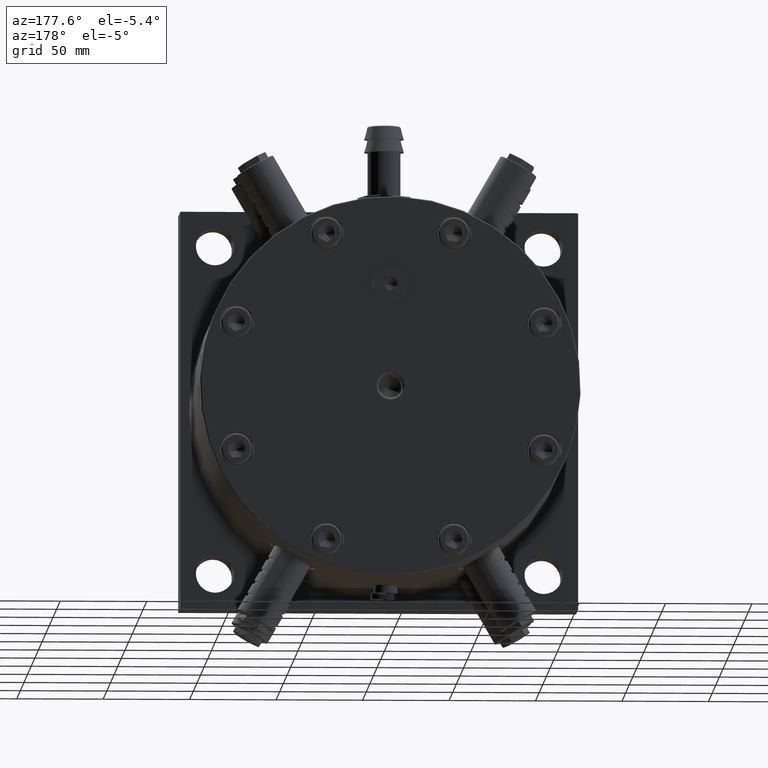
[diagram: clean part render]
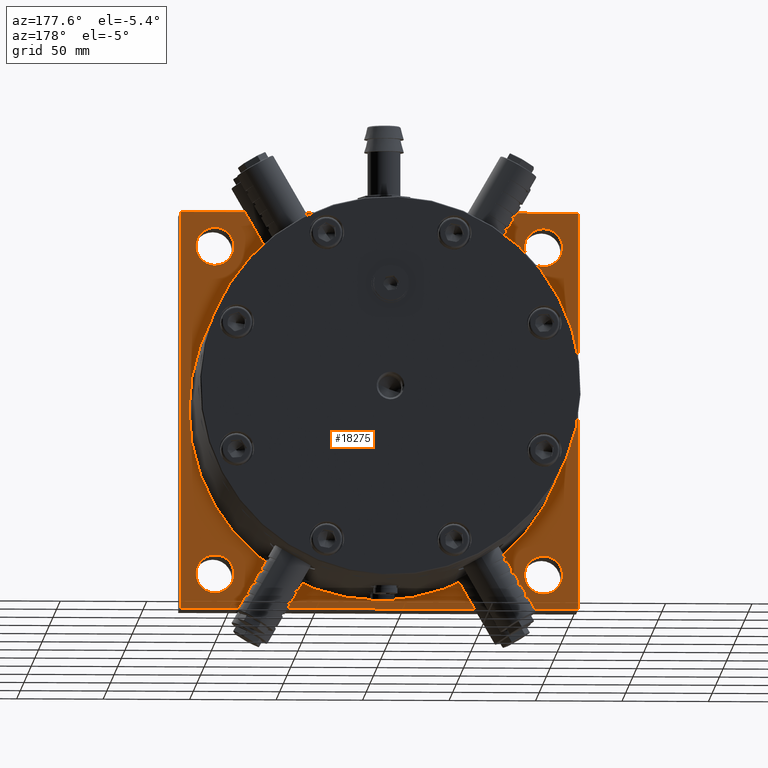
[diagram: same view with one face highlighted and labeled with its STEP entity id]
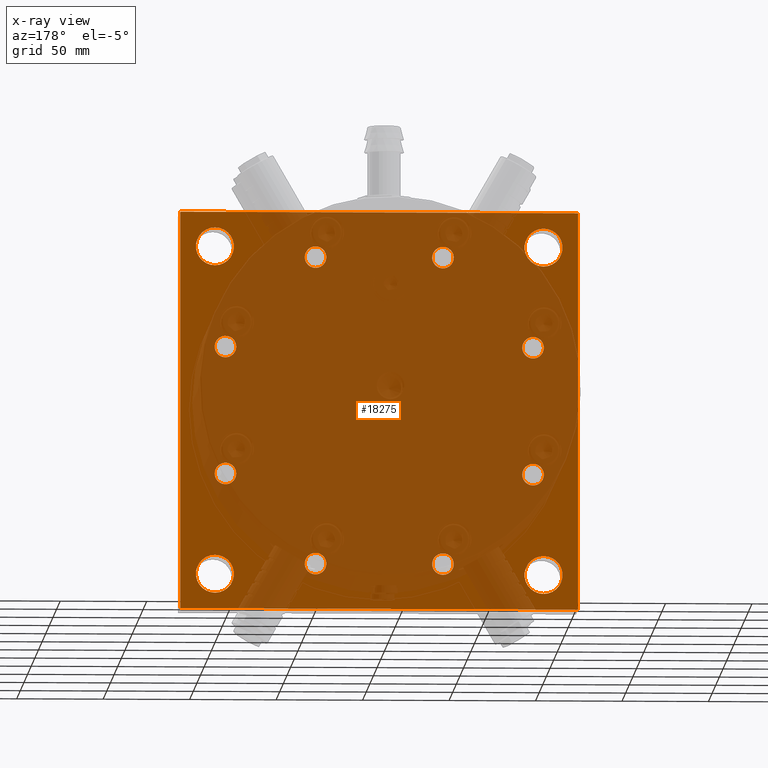
[diagram: x-ray of the same camera — body ghosted, the highlighted face saturated]
A machine part, auxiliary view. The second image highlights one B-rep face of the part: STEP entity #18275.
The next image is the same camera in x-ray: the body ghosted, the highlighted face saturated — about 81% of this face is hidden behind the body in this view.
In plain terms, the highlighted planar face has unit normal (0, -1, 0).
Its self-contained STEP definition (entity closure, byte-faithful):
#238 = EDGE_CURVE ( 'NONE', #39135, #37005, #73129, .T. ) ;
#685 = DIRECTION ( 'NONE',  ( 6.938893903907229900E-018, -1.000000000000000000, 1.387778780781446000E-017 ) ) ;
#920 = CARTESIAN_POINT ( 'NONE',  ( -95.00000000000000000, 30.00000000000000000, 84.00000000000000000 ) ) ;
#973 = VERTEX_POINT ( 'NONE', #70862 ) ;
#1111 = ORIENTED_EDGE ( 'NONE', *, *, #49493, .T. ) ;
#1340 = ORIENTED_EDGE ( 'NONE', *, *, #34549, .F. ) ;
#1390 = DIRECTION ( 'NONE',  ( 6.938893903907229900E-018, -1.000000000000000000, 1.387778780781446000E-017 ) ) ;
#1669 = CARTESIAN_POINT ( 'NONE',  ( 115.0000000000000000, 30.00000000000000000, -115.0000000000000000 ) ) ;
#1937 = DIRECTION ( 'NONE',  ( 0.0000000000000000000, 0.0000000000000000000, -1.000000000000000000 ) ) ;
#2023 = VERTEX_POINT ( 'NONE', #15480 ) ;
#2024 = DIRECTION ( 'NONE',  ( 6.938893903907229900E-018, -1.000000000000000000, 1.387778780781446000E-017 ) ) ;
#2575 = VERTEX_POINT ( 'NONE', #12287 ) ;
#2736 = CIRCLE ( 'NONE', #13615, 6.250000000000005300 ) ;
#2757 = CIRCLE ( 'NONE', #38397, 6.250000000000002700 ) ;
#2866 = ORIENTED_EDGE ( 'NONE', *, *, #46795, .T. ) ;
#2909 = DIRECTION ( 'NONE',  ( -1.000000000000000000, 0.0000000000000000000, 9.992007221626401000E-015 ) ) ;
#3011 = DIRECTION ( 'NONE',  ( 1.000000000000000000, 0.0000000000000000000, -3.330669073875466900E-015 ) ) ;
#3479 = ORIENTED_EDGE ( 'NONE', *, *, #238, .T. ) ;
#3729 = EDGE_CURVE ( 'NONE', #46838, #17806, #16886, .T. ) ;
#3855 = CARTESIAN_POINT ( 'NONE',  ( -88.92340500421239800, 30.00000000000000000, -36.83328036513954400 ) ) ;
#4217 = EDGE_LOOP ( 'NONE', ( #7957, #60934 ) ) ;
#4321 = DIRECTION ( 'NONE',  ( 6.938893903907229900E-018, -1.000000000000000000, 1.387778780781446000E-017 ) ) ;
#4671 = AXIS2_PLACEMENT_3D ( 'NONE', #18884, #41245, #18628 ) ;
#4727 = CARTESIAN_POINT ( 'NONE',  ( -88.92340500421210000, 30.00000000000000000, 36.83328036514040300 ) ) ;
#4939 = VERTEX_POINT ( 'NONE', #21156 ) ;
#5226 = EDGE_LOOP ( 'NONE', ( #19890, #64031 ) ) ;
#6187 = VERTEX_POINT ( 'NONE', #70993 ) ;
#6239 = DIRECTION ( 'NONE',  ( 1.000000000000000000, 0.0000000000000000000, -3.330669073875466900E-015 ) ) ;
#6454 = DIRECTION ( 'NONE',  ( -2.465922601272785300E-016, 1.478485803948513900E-018, 1.000000000000000000 ) ) ;
#6866 = EDGE_LOOP ( 'NONE', ( #25203, #10555 ) ) ;
#7000 = DIRECTION ( 'NONE',  ( 6.938893903907229900E-018, -1.000000000000000000, 1.387778780781446000E-017 ) ) ;
#7957 = ORIENTED_EDGE ( 'NONE', *, *, #33354, .T. ) ;
#8182 = DIRECTION ( 'NONE',  ( 6.938893903907229900E-018, -1.000000000000000000, 1.387778780781446000E-017 ) ) ;
#8216 = AXIS2_PLACEMENT_3D ( 'NONE', #25938, #61221, #37955 ) ;
#8779 = CIRCLE ( 'NONE', #27180, 6.250000000000005300 ) ;
#8829 = DIRECTION ( 'NONE',  ( 6.938893903907229900E-018, -1.000000000000000000, 1.387778780781446000E-017 ) ) ;
#9146 = VERTEX_POINT ( 'NONE', #50527 ) ;
#9396 = DIRECTION ( 'NONE',  ( 0.0000000000000000000, 0.0000000000000000000, 1.000000000000000000 ) ) ;
#9770 = AXIS2_PLACEMENT_3D ( 'NONE', #71657, #48928, #49178 ) ;
#9817 = VERTEX_POINT ( 'NONE', #29284 ) ;
#10464 = AXIS2_PLACEMENT_3D ( 'NONE', #49102, #72533, #20510 ) ;
#10471 = CARTESIAN_POINT ( 'NONE',  ( -93.34282238662831300, 30.00000000000000000, -41.25269774755545900 ) ) ;
#10555 = ORIENTED_EDGE ( 'NONE', *, *, #26642, .T. ) ;
#10568 = ORIENTED_EDGE ( 'NONE', *, *, #24955, .T. ) ;
#10874 = CARTESIAN_POINT ( 'NONE',  ( 41.25269774755372500, 30.00000000000000000, -93.34282238662766000 ) ) ;
#11516 = EDGE_CURVE ( 'NONE', #37864, #39817, #68960, .T. ) ;
#11767 = CARTESIAN_POINT ( 'NONE',  ( -88.92340500421239800, 30.00000000000000000, -36.83328036513954400 ) ) ;
#12255 = ORIENTED_EDGE ( 'NONE', *, *, #53181, .T. ) ;
#12287 = CARTESIAN_POINT ( 'NONE',  ( 115.0000000000000000, 30.00000000000000000, 115.0000000000000000 ) ) ;
#12416 = VERTEX_POINT ( 'NONE', #73099 ) ;
#13243 = VERTEX_POINT ( 'NONE', #59543 ) ;
#13615 = AXIS2_PLACEMENT_3D ( 'NONE', #48294, #8182, #26208 ) ;
#13832 = FACE_OUTER_BOUND ( 'NONE', #67614, .T. ) ;
#14443 = CIRCLE ( 'NONE', #8216, 6.249999999999996400 ) ;
#14469 = EDGE_CURVE ( 'NONE', #13243, #41021, #62423, .T. ) ;
#14678 = CARTESIAN_POINT ( 'NONE',  ( -115.0000000000000000, 30.00000000000000000, 115.0000000000000000 ) ) ;
#14793 = DIRECTION ( 'NONE',  ( 6.938893903907229900E-018, -1.000000000000000000, 1.387778780781446000E-017 ) ) ;
#15353 = AXIS2_PLACEMENT_3D ( 'NONE', #70499, #43774, #9396 ) ;
#15480 = CARTESIAN_POINT ( 'NONE',  ( -84.50398762179646900, 30.00000000000000000, -32.41386298272363600 ) ) ;
#15595 = FACE_BOUND ( 'NONE', #4217, .T. ) ;
#16072 = EDGE_CURVE ( 'NONE', #47399, #9817, #70233, .T. ) ;
#16611 = AXIS2_PLACEMENT_3D ( 'NONE', #40547, #685, #29224 ) ;
#16652 = CARTESIAN_POINT ( 'NONE',  ( -95.00000000000000000, 30.00000000000000000, -84.00000000000000000 ) ) ;
#16815 = CARTESIAN_POINT ( 'NONE',  ( -115.0000000000000000, 30.00000000000000000, -115.0000000000000000 ) ) ;
#16886 = CIRCLE ( 'NONE', #9770, 6.249999999999996400 ) ;
#17054 = DIRECTION ( 'NONE',  ( 1.259158444071523800E-016, -1.478485803948512000E-018, -1.000000000000000000 ) ) ;
#17314 = CARTESIAN_POINT ( 'NONE',  ( -95.00000000000000000, 30.00000000000000000, 95.00000000000000000 ) ) ;
#17403 = FACE_BOUND ( 'NONE', #18227, .T. ) ;
#17539 = ORIENTED_EDGE ( 'NONE', *, *, #59467, .T. ) ;
#17806 = VERTEX_POINT ( 'NONE', #54461 ) ;
#18227 = EDGE_LOOP ( 'NONE', ( #2866, #60289 ) ) ;
#18275 = ADVANCED_FACE ( 'NONE', ( #44355, #71149, #26423, #39884, #40773, #49705, #32678, #17403, #61353, #30891, #15595, #29078, #13832 ), #54869, .F. ) ;
#18462 = ORIENTED_EDGE ( 'NONE', *, *, #40067, .T. ) ;
#18591 = CIRCLE ( 'NONE', #40766, 6.250000000000005300 ) ;
#18628 = DIRECTION ( 'NONE',  ( 0.0000000000000000000, 0.0000000000000000000, 1.000000000000000000 ) ) ;
#18884 = CARTESIAN_POINT ( 'NONE',  ( 95.00000000000000000, 30.00000000000000000, -95.00000000000000000 ) ) ;
#18958 = AXIS2_PLACEMENT_3D ( 'NONE', #4727, #62117, #6239 ) ;
#19890 = ORIENTED_EDGE ( 'NONE', *, *, #11516, .T. ) ;
#20510 = DIRECTION ( 'NONE',  ( -6.557763654708959400E-017, 1.478485803948509700E-018, 1.000000000000000000 ) ) ;
#21076 = ORIENTED_EDGE ( 'NONE', *, *, #42498, .T. ) ;
#21156 = CARTESIAN_POINT ( 'NONE',  ( -36.83328036514085100, 30.00000000000000000, -95.17340500421120500 ) ) ;
#21462 = LINE ( 'NONE', #27372, #63610 ) ;
#21971 = DIRECTION ( 'NONE',  ( 6.938893903907229900E-018, -1.000000000000000000, 1.387778780781446000E-017 ) ) ;
#22386 = EDGE_CURVE ( 'NONE', #57074, #973, #69791, .T. ) ;
#22864 = LINE ( 'NONE', #16815, #64137 ) ;
#23011 = CIRCLE ( 'NONE', #56373, 6.249999999999997300 ) ;
#23028 = DIRECTION ( 'NONE',  ( 0.7071067811865441300, 0.0000000000000000000, -0.7071067811865507900 ) ) ;
#23098 = EDGE_LOOP ( 'NONE', ( #12255, #17539 ) ) ;
#23142 = EDGE_LOOP ( 'NONE', ( #24845, #69532 ) ) ;
#23674 = DIRECTION ( 'NONE',  ( 6.938893903907229900E-018, -1.000000000000000000, 1.387778780781446000E-017 ) ) ;
#24390 = CIRCLE ( 'NONE', #39972, 6.250000000000005300 ) ;
#24488 = VECTOR ( 'NONE', #6454, 1000.000000000000000 ) ;
#24615 = AXIS2_PLACEMENT_3D ( 'NONE', #64353, #7000, #69801 ) ;
#24623 = AXIS2_PLACEMENT_3D ( 'NONE', #17314, #46187, #45187 ) ;
#24744 = CARTESIAN_POINT ( 'NONE',  ( 95.00000000000000000, 30.00000000000000000, 95.00000000000000000 ) ) ;
#24845 = ORIENTED_EDGE ( 'NONE', *, *, #62926, .T. ) ;
#24955 = EDGE_CURVE ( 'NONE', #12416, #4939, #8779, .T. ) ;
#25164 = AXIS2_PLACEMENT_3D ( 'NONE', #24744, #64802, #1937 ) ;
#25203 = ORIENTED_EDGE ( 'NONE', *, *, #16072, .T. ) ;
#25446 = EDGE_LOOP ( 'NONE', ( #53632, #29930 ) ) ;
#25603 = EDGE_LOOP ( 'NONE', ( #1111, #3479 ) ) ;
#25660 = AXIS2_PLACEMENT_3D ( 'NONE', #3855, #4321, #44477 ) ;
#25938 = CARTESIAN_POINT ( 'NONE',  ( 36.83328036513785300, 30.00000000000000000, -88.92340500421170200 ) ) ;
#26132 = DIRECTION ( 'NONE',  ( -6.661338147750933700E-015, 0.0000000000000000000, -1.000000000000000000 ) ) ;
#26208 = DIRECTION ( 'NONE',  ( -1.000000000000000000, 0.0000000000000000000, 9.992007221626401000E-015 ) ) ;
#26423 = FACE_BOUND ( 'NONE', #52348, .T. ) ;
#26505 = DIRECTION ( 'NONE',  ( -0.7071067811865546800, 0.0000000000000000000, -0.7071067811865402500 ) ) ;
#26642 = EDGE_CURVE ( 'NONE', #9817, #47399, #69425, .T. ) ;
#27180 = AXIS2_PLACEMENT_3D ( 'NONE', #64264, #1390, #69973 ) ;
#27372 = CARTESIAN_POINT ( 'NONE',  ( 115.0000000000000000, 30.00000000000000000, 115.0000000000000000 ) ) ;
#27652 = ORIENTED_EDGE ( 'NONE', *, *, #14469, .T. ) ;
#27662 = VERTEX_POINT ( 'NONE', #16652 ) ;
#28160 = CARTESIAN_POINT ( 'NONE',  ( 36.83328036513970000, 30.00000000000000000, 88.92340500421120500 ) ) ;
#28622 = AXIS2_PLACEMENT_3D ( 'NONE', #33787, #21971, #73771 ) ;
#28925 = CIRCLE ( 'NONE', #28622, 10.99999999999999600 ) ;
#29078 = FACE_BOUND ( 'NONE', #68729, .T. ) ;
#29155 = EDGE_CURVE ( 'NONE', #17806, #46838, #14443, .T. ) ;
#29162 = AXIS2_PLACEMENT_3D ( 'NONE', #60742, #43038, #2909 ) ;
#29224 = DIRECTION ( 'NONE',  ( 0.7071067811865441300, 0.0000000000000000000, -0.7071067811865507900 ) ) ;
#29284 = CARTESIAN_POINT ( 'NONE',  ( -41.25269774755614800, 30.00000000000000000, 93.34282238662764500 ) ) ;
#29930 = ORIENTED_EDGE ( 'NONE', *, *, #3729, .T. ) ;
#30322 = CARTESIAN_POINT ( 'NONE',  ( -32.41386298272434600, 30.00000000000000000, 84.50398762179575800 ) ) ;
#30412 = CIRCLE ( 'NONE', #24623, 10.99999999999999600 ) ;
#30891 = FACE_BOUND ( 'NONE', #42934, .T. ) ;
#31316 = CARTESIAN_POINT ( 'NONE',  ( -95.00000000000000000, 30.00000000000000000, 106.0000000000000000 ) ) ;
#31686 = CARTESIAN_POINT ( 'NONE',  ( -82.67340500421210000, 30.00000000000000000, 36.83328036514038200 ) ) ;
#31790 = CARTESIAN_POINT ( 'NONE',  ( 93.34282238662676400, 30.00000000000000000, 41.25269774755507500 ) ) ;
#32526 = CARTESIAN_POINT ( 'NONE',  ( 88.92340500421079200, 30.00000000000000000, 36.83328036513920300 ) ) ;
#32678 = FACE_BOUND ( 'NONE', #5226, .T. ) ;
#33354 = EDGE_CURVE ( 'NONE', #2023, #35013, #43700, .T. ) ;
#33785 = EDGE_CURVE ( 'NONE', #35013, #2023, #23011, .T. ) ;
#33787 = CARTESIAN_POINT ( 'NONE',  ( -95.00000000000000000, 30.00000000000000000, -95.00000000000000000 ) ) ;
#33982 = CARTESIAN_POINT ( 'NONE',  ( 84.50398762179482000, 30.00000000000000000, 32.41386298272332300 ) ) ;
#34288 = ORIENTED_EDGE ( 'NONE', *, *, #50533, .F. ) ;
#34549 = EDGE_CURVE ( 'NONE', #46590, #57074, #22864, .T. ) ;
#34587 = AXIS2_PLACEMENT_3D ( 'NONE', #69936, #23674, #63481 ) ;
#35013 = VERTEX_POINT ( 'NONE', #10471 ) ;
#35054 = CARTESIAN_POINT ( 'NONE',  ( 115.0000000000000000, 30.00000000000000000, -115.0000000000000000 ) ) ;
#35100 = ORIENTED_EDGE ( 'NONE', *, *, #22386, .F. ) ;
#35178 = CARTESIAN_POINT ( 'NONE',  ( -95.00000000000000000, 30.00000000000000000, -106.0000000000000000 ) ) ;
#35567 = CARTESIAN_POINT ( 'NONE',  ( -36.83328036514024700, 30.00000000000000000, 88.92340500421170200 ) ) ;
#37005 = VERTEX_POINT ( 'NONE', #46179 ) ;
#37377 = EDGE_CURVE ( 'NONE', #27662, #61862, #28925, .T. ) ;
#37864 = VERTEX_POINT ( 'NONE', #33982 ) ;
#37955 = DIRECTION ( 'NONE',  ( -0.7071067811865398000, 0.0000000000000000000, 0.7071067811865553400 ) ) ;
#38373 = CARTESIAN_POINT ( 'NONE',  ( 36.83328036513970000, 30.00000000000000000, 88.92340500421120500 ) ) ;
#38397 = AXIS2_PLACEMENT_3D ( 'NONE', #63529, #64035, #40790 ) ;
#39135 = VERTEX_POINT ( 'NONE', #41207 ) ;
#39386 = VECTOR ( 'NONE', #52795, 1000.000000000000000 ) ;
#39817 = VERTEX_POINT ( 'NONE', #31790 ) ;
#39884 = FACE_BOUND ( 'NONE', #25603, .T. ) ;
#39972 = AXIS2_PLACEMENT_3D ( 'NONE', #38373, #49893, #26132 ) ;
#40067 = EDGE_CURVE ( 'NONE', #50144, #53989, #47788, .T. ) ;
#40547 = CARTESIAN_POINT ( 'NONE',  ( -36.83328036514024700, 30.00000000000000000, 88.92340500421170200 ) ) ;
#40766 = AXIS2_PLACEMENT_3D ( 'NONE', #47954, #8829, #48909 ) ;
#40773 = FACE_BOUND ( 'NONE', #25446, .T. ) ;
#40790 = DIRECTION ( 'NONE',  ( -0.7071067811865546800, 0.0000000000000000000, -0.7071067811865402500 ) ) ;
#41021 = VERTEX_POINT ( 'NONE', #31686 ) ;
#41094 = AXIS2_PLACEMENT_3D ( 'NONE', #48381, #2024, #3011 ) ;
#41207 = CARTESIAN_POINT ( 'NONE',  ( 95.00000000000000000, 30.00000000000000000, -106.0000000000000000 ) ) ;
#41245 = DIRECTION ( 'NONE',  ( 6.938893903907229900E-018, -1.000000000000000000, 1.387778780781446000E-017 ) ) ;
#41278 = CARTESIAN_POINT ( 'NONE',  ( 95.00000000000000000, 30.00000000000000000, 84.00000000000000000 ) ) ;
#41744 = AXIS2_PLACEMENT_3D ( 'NONE', #49872, #14793, #55159 ) ;
#41972 = AXIS2_PLACEMENT_3D ( 'NONE', #32526, #66544, #26505 ) ;
#42498 = EDGE_CURVE ( 'NONE', #53989, #50144, #30412, .T. ) ;
#42658 = VERTEX_POINT ( 'NONE', #54404 ) ;
#42934 = EDGE_LOOP ( 'NONE', ( #65010, #27652 ) ) ;
#43038 = DIRECTION ( 'NONE',  ( 6.938893903907229900E-018, -1.000000000000000000, 1.387778780781446000E-017 ) ) ;
#43700 = CIRCLE ( 'NONE', #25660, 6.249999999999997300 ) ;
#43774 = DIRECTION ( 'NONE',  ( 6.938893903907229900E-018, -1.000000000000000000, 1.387778780781446000E-017 ) ) ;
#44355 = FACE_BOUND ( 'NONE', #23098, .T. ) ;
#44477 = DIRECTION ( 'NONE',  ( 0.7071067811865486800, 0.0000000000000000000, 0.7071067811865464600 ) ) ;
#44492 = VERTEX_POINT ( 'NONE', #41278 ) ;
#45187 = DIRECTION ( 'NONE',  ( 0.0000000000000000000, 0.0000000000000000000, 1.000000000000000000 ) ) ;
#46067 = CARTESIAN_POINT ( 'NONE',  ( -115.0000000000000000, 30.00000000000000000, -115.0000000000000000 ) ) ;
#46179 = CARTESIAN_POINT ( 'NONE',  ( 95.00000000000000000, 30.00000000000000000, -84.00000000000000000 ) ) ;
#46187 = DIRECTION ( 'NONE',  ( 6.938893903907229900E-018, -1.000000000000000000, 1.387778780781446000E-017 ) ) ;
#46335 = EDGE_CURVE ( 'NONE', #973, #2575, #51337, .T. ) ;
#46590 = VERTEX_POINT ( 'NONE', #14678 ) ;
#46795 = EDGE_CURVE ( 'NONE', #6187, #42658, #57604, .T. ) ;
#46838 = VERTEX_POINT ( 'NONE', #10874 ) ;
#47007 = AXIS2_PLACEMENT_3D ( 'NONE', #35567, #69534, #23028 ) ;
#47399 = VERTEX_POINT ( 'NONE', #30322 ) ;
#47788 = CIRCLE ( 'NONE', #15353, 10.99999999999999600 ) ;
#47954 = CARTESIAN_POINT ( 'NONE',  ( -36.83328036514085100, 30.00000000000000000, -88.92340500421120500 ) ) ;
#48294 = CARTESIAN_POINT ( 'NONE',  ( 88.92340500421009600, 30.00000000000000000, -36.83328036514074500 ) ) ;
#48381 = CARTESIAN_POINT ( 'NONE',  ( -88.92340500421210000, 30.00000000000000000, 36.83328036514040300 ) ) ;
#48909 = DIRECTION ( 'NONE',  ( 0.0000000000000000000, 0.0000000000000000000, 1.000000000000000000 ) ) ;
#48928 = DIRECTION ( 'NONE',  ( 6.938893903907229900E-018, -1.000000000000000000, 1.387778780781446000E-017 ) ) ;
#49028 = CIRCLE ( 'NONE', #24615, 10.99999999999999600 ) ;
#49102 = CARTESIAN_POINT ( 'NONE',  ( 115.0000000000000000, 30.00000000000000000, 115.0000000000000000 ) ) ;
#49178 = DIRECTION ( 'NONE',  ( -0.7071067811865398000, 0.0000000000000000000, 0.7071067811865553400 ) ) ;
#49493 = EDGE_CURVE ( 'NONE', #37005, #39135, #69084, .T. ) ;
#49647 = ORIENTED_EDGE ( 'NONE', *, *, #46335, .F. ) ;
#49705 = FACE_BOUND ( 'NONE', #23142, .T. ) ;
#49872 = CARTESIAN_POINT ( 'NONE',  ( 95.00000000000000000, 30.00000000000000000, -95.00000000000000000 ) ) ;
#49893 = DIRECTION ( 'NONE',  ( 6.938893903907229900E-018, -1.000000000000000000, 1.387778780781446000E-017 ) ) ;
#50127 = EDGE_CURVE ( 'NONE', #39817, #37864, #2757, .T. ) ;
#50144 = VERTEX_POINT ( 'NONE', #920 ) ;
#50527 = CARTESIAN_POINT ( 'NONE',  ( 82.67340500421009600, 30.00000000000000000, -36.83328036514068800 ) ) ;
#50533 = EDGE_CURVE ( 'NONE', #2575, #46590, #21462, .T. ) ;
#50738 = CIRCLE ( 'NONE', #41094, 6.250000000000005300 ) ;
#51337 = LINE ( 'NONE', #35054, #24488 ) ;
#51482 = DIRECTION ( 'NONE',  ( 6.938893903907229900E-018, -1.000000000000000000, 1.387778780781446000E-017 ) ) ;
#51849 = VERTEX_POINT ( 'NONE', #59789 ) ;
#52348 = EDGE_LOOP ( 'NONE', ( #53400, #61434 ) ) ;
#52795 = DIRECTION ( 'NONE',  ( 1.000000000000000000, -1.387778780781446000E-017, 1.010589132809709800E-017 ) ) ;
#53181 = EDGE_CURVE ( 'NONE', #65236, #44492, #61466, .T. ) ;
#53400 = ORIENTED_EDGE ( 'NONE', *, *, #37377, .T. ) ;
#53632 = ORIENTED_EDGE ( 'NONE', *, *, #29155, .T. ) ;
#53989 = VERTEX_POINT ( 'NONE', #31316 ) ;
#54404 = CARTESIAN_POINT ( 'NONE',  ( 36.83328036513974300, 30.00000000000000000, 95.17340500421120500 ) ) ;
#54461 = CARTESIAN_POINT ( 'NONE',  ( 32.41386298272198000, 30.00000000000000000, -84.50398762179573000 ) ) ;
#54869 = PLANE ( 'NONE',  #10464 ) ;
#55159 = DIRECTION ( 'NONE',  ( 0.0000000000000000000, 0.0000000000000000000, 1.000000000000000000 ) ) ;
#56373 = AXIS2_PLACEMENT_3D ( 'NONE', #11767, #68064, #68312 ) ;
#57074 = VERTEX_POINT ( 'NONE', #46067 ) ;
#57496 = DIRECTION ( 'NONE',  ( -6.661338147750933700E-015, 0.0000000000000000000, -1.000000000000000000 ) ) ;
#57604 = CIRCLE ( 'NONE', #71278, 6.250000000000005300 ) ;
#57733 = EDGE_CURVE ( 'NONE', #4939, #12416, #18591, .T. ) ;
#57753 = CIRCLE ( 'NONE', #29162, 6.250000000000005300 ) ;
#59467 = EDGE_CURVE ( 'NONE', #44492, #65236, #69417, .T. ) ;
#59543 = CARTESIAN_POINT ( 'NONE',  ( -95.17340500421210000, 30.00000000000000000, 36.83328036514041800 ) ) ;
#59789 = CARTESIAN_POINT ( 'NONE',  ( 95.17340500421011000, 30.00000000000000000, -36.83328036514081600 ) ) ;
#60289 = ORIENTED_EDGE ( 'NONE', *, *, #70321, .T. ) ;
#60742 = CARTESIAN_POINT ( 'NONE',  ( 88.92340500421009600, 30.00000000000000000, -36.83328036514074500 ) ) ;
#60934 = ORIENTED_EDGE ( 'NONE', *, *, #33785, .T. ) ;
#61221 = DIRECTION ( 'NONE',  ( 6.938893903907229900E-018, -1.000000000000000000, 1.387778780781446000E-017 ) ) ;
#61353 = FACE_BOUND ( 'NONE', #6866, .T. ) ;
#61434 = ORIENTED_EDGE ( 'NONE', *, *, #62285, .T. ) ;
#61466 = CIRCLE ( 'NONE', #25164, 10.99999999999999600 ) ;
#61862 = VERTEX_POINT ( 'NONE', #35178 ) ;
#62117 = DIRECTION ( 'NONE',  ( 6.938893903907229900E-018, -1.000000000000000000, 1.387778780781446000E-017 ) ) ;
#62285 = EDGE_CURVE ( 'NONE', #61862, #27662, #49028, .T. ) ;
#62423 = CIRCLE ( 'NONE', #18958, 6.250000000000005300 ) ;
#62926 = EDGE_CURVE ( 'NONE', #9146, #51849, #2736, .T. ) ;
#63481 = DIRECTION ( 'NONE',  ( 0.0000000000000000000, 0.0000000000000000000, -1.000000000000000000 ) ) ;
#63482 = EDGE_LOOP ( 'NONE', ( #21076, #18462 ) ) ;
#63529 = CARTESIAN_POINT ( 'NONE',  ( 88.92340500421079200, 30.00000000000000000, 36.83328036513920300 ) ) ;
#63610 = VECTOR ( 'NONE', #67425, 1000.000000000000000 ) ;
#64031 = ORIENTED_EDGE ( 'NONE', *, *, #50127, .T. ) ;
#64035 = DIRECTION ( 'NONE',  ( 6.938893903907229900E-018, -1.000000000000000000, 1.387778780781446000E-017 ) ) ;
#64137 = VECTOR ( 'NONE', #17054, 1000.000000000000000 ) ;
#64264 = CARTESIAN_POINT ( 'NONE',  ( -36.83328036514085100, 30.00000000000000000, -88.92340500421120500 ) ) ;
#64353 = CARTESIAN_POINT ( 'NONE',  ( -95.00000000000000000, 30.00000000000000000, -95.00000000000000000 ) ) ;
#64802 = DIRECTION ( 'NONE',  ( 6.938893903907229900E-018, -1.000000000000000000, 1.387778780781446000E-017 ) ) ;
#65010 = ORIENTED_EDGE ( 'NONE', *, *, #66339, .T. ) ;
#65236 = VERTEX_POINT ( 'NONE', #70466 ) ;
#66339 = EDGE_CURVE ( 'NONE', #41021, #13243, #50738, .T. ) ;
#66544 = DIRECTION ( 'NONE',  ( 6.938893903907229900E-018, -1.000000000000000000, 1.387778780781446000E-017 ) ) ;
#67425 = DIRECTION ( 'NONE',  ( -1.000000000000000000, 1.387778780781446000E-017, -1.010589132809709800E-017 ) ) ;
#67614 = EDGE_LOOP ( 'NONE', ( #49647, #35100, #1340, #34288 ) ) ;
#67816 = EDGE_CURVE ( 'NONE', #51849, #9146, #57753, .T. ) ;
#68064 = DIRECTION ( 'NONE',  ( 6.938893903907229900E-018, -1.000000000000000000, 1.387778780781446000E-017 ) ) ;
#68312 = DIRECTION ( 'NONE',  ( 0.7071067811865486800, 0.0000000000000000000, 0.7071067811865464600 ) ) ;
#68729 = EDGE_LOOP ( 'NONE', ( #10568, #69488 ) ) ;
#68960 = CIRCLE ( 'NONE', #41972, 6.250000000000002700 ) ;
#69084 = CIRCLE ( 'NONE', #4671, 10.99999999999999600 ) ;
#69417 = CIRCLE ( 'NONE', #34587, 10.99999999999999600 ) ;
#69425 = CIRCLE ( 'NONE', #47007, 6.249999999999997300 ) ;
#69488 = ORIENTED_EDGE ( 'NONE', *, *, #57733, .T. ) ;
#69532 = ORIENTED_EDGE ( 'NONE', *, *, #67816, .T. ) ;
#69534 = DIRECTION ( 'NONE',  ( 6.938893903907229900E-018, -1.000000000000000000, 1.387778780781446000E-017 ) ) ;
#69791 = LINE ( 'NONE', #1669, #39386 ) ;
#69801 = DIRECTION ( 'NONE',  ( 0.0000000000000000000, 0.0000000000000000000, -1.000000000000000000 ) ) ;
#69936 = CARTESIAN_POINT ( 'NONE',  ( 95.00000000000000000, 30.00000000000000000, 95.00000000000000000 ) ) ;
#69973 = DIRECTION ( 'NONE',  ( 0.0000000000000000000, 0.0000000000000000000, 1.000000000000000000 ) ) ;
#70233 = CIRCLE ( 'NONE', #16611, 6.249999999999997300 ) ;
#70321 = EDGE_CURVE ( 'NONE', #42658, #6187, #24390, .T. ) ;
#70466 = CARTESIAN_POINT ( 'NONE',  ( 95.00000000000000000, 30.00000000000000000, 106.0000000000000000 ) ) ;
#70499 = CARTESIAN_POINT ( 'NONE',  ( -95.00000000000000000, 30.00000000000000000, 95.00000000000000000 ) ) ;
#70862 = CARTESIAN_POINT ( 'NONE',  ( 115.0000000000000000, 30.00000000000000000, -115.0000000000000000 ) ) ;
#70993 = CARTESIAN_POINT ( 'NONE',  ( 36.83328036513965700, 30.00000000000000000, 82.67340500421119000 ) ) ;
#71149 = FACE_BOUND ( 'NONE', #63482, .T. ) ;
#71278 = AXIS2_PLACEMENT_3D ( 'NONE', #28160, #51482, #57496 ) ;
#71657 = CARTESIAN_POINT ( 'NONE',  ( 36.83328036513785300, 30.00000000000000000, -88.92340500421170200 ) ) ;
#72533 = DIRECTION ( 'NONE',  ( 6.938893903907231500E-018, -1.000000000000000000, 1.478485803948510100E-018 ) ) ;
#73099 = CARTESIAN_POINT ( 'NONE',  ( -36.83328036514085100, 30.00000000000000000, -82.67340500421119000 ) ) ;
#73129 = CIRCLE ( 'NONE', #41744, 10.99999999999999600 ) ;
#73771 = DIRECTION ( 'NONE',  ( 0.0000000000000000000, 0.0000000000000000000, -1.000000000000000000 ) ) ;